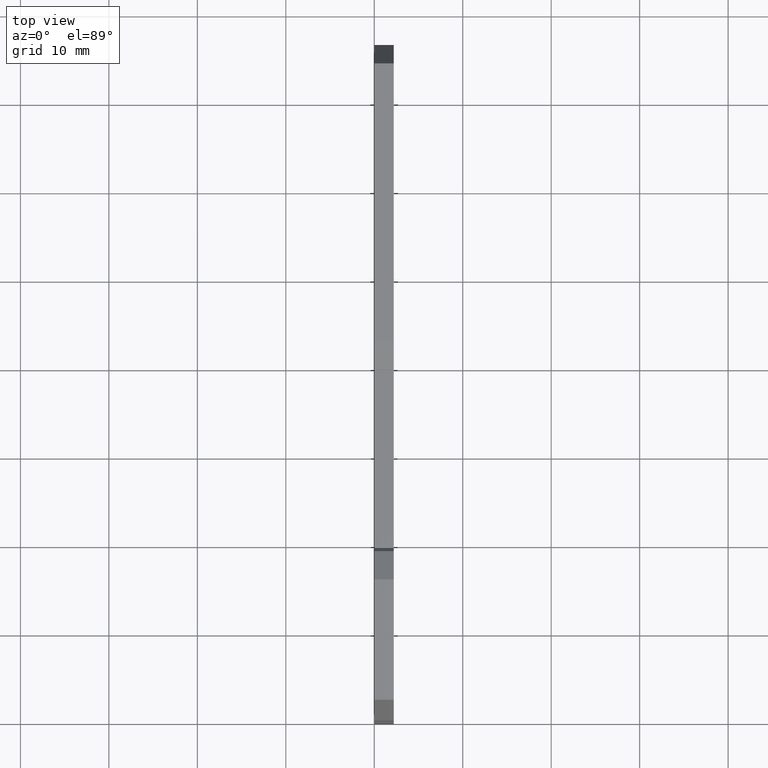
[diagram: clean part render]
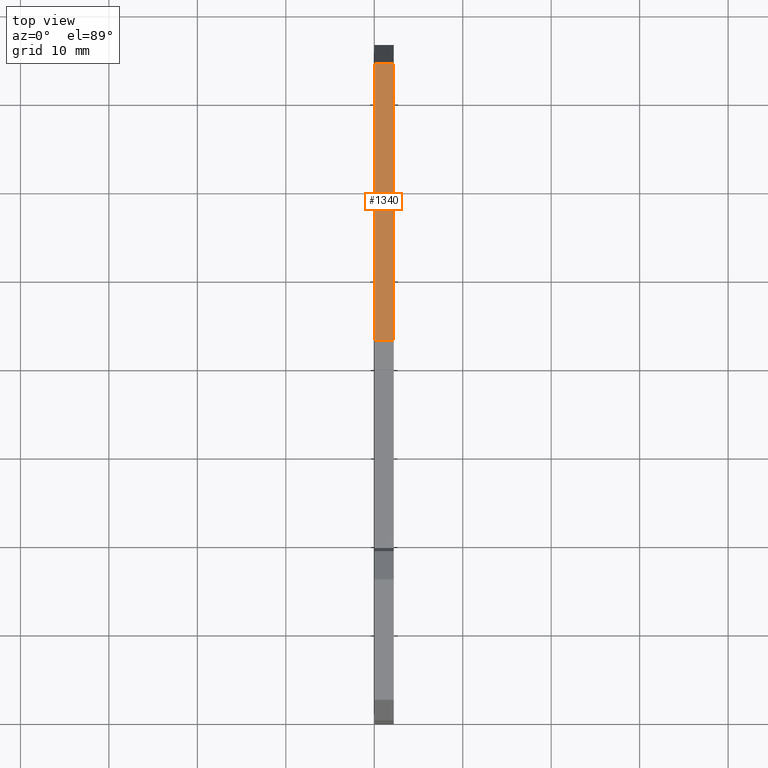
[diagram: same view with one face highlighted and labeled with its STEP entity id]
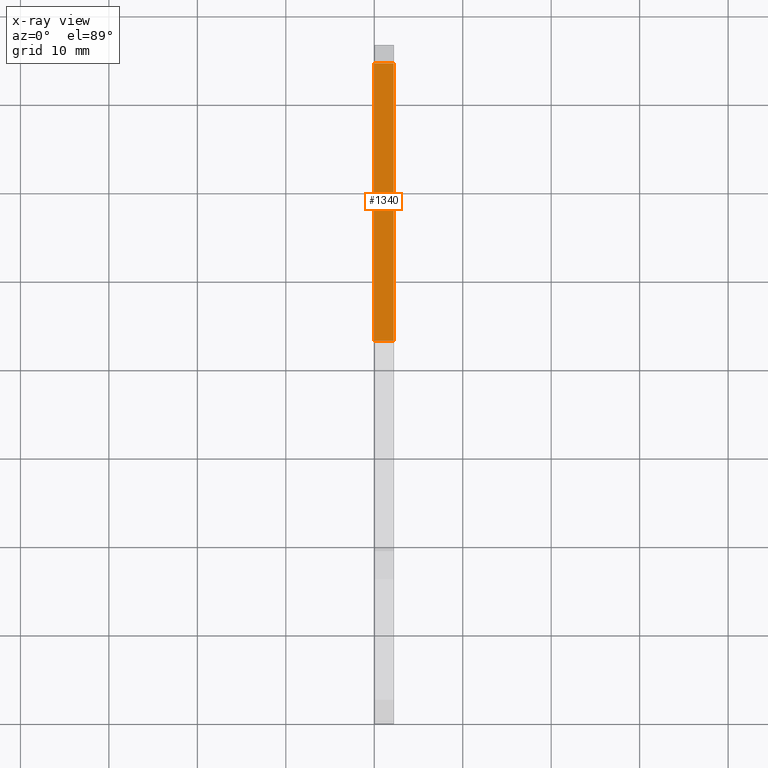
[diagram: x-ray of the same camera — body ghosted, the highlighted face saturated]
A machine part, top view. The second image highlights one B-rep face of the part: STEP entity #1340.
The next image is the same camera in x-ray: the body ghosted, the highlighted face saturated — about 0% of this face is hidden behind the body in this view.
In plain terms, the highlighted planar face has unit normal (-0, 0, 1).
Its self-contained STEP definition (entity closure, byte-faithful):
#950=CARTESIAN_POINT('',(79.8284829547486,-6.65000000001046,
-3.68594044175552E-14));
#960=DIRECTION('',(0.,1.,0.));
#970=DIRECTION('',(0.,0.,1.));
#980=AXIS2_PLACEMENT_3D('',#950,#960,#970);
#990=PLANE('',#980);
#1000=CARTESIAN_POINT('',(82.9015374042713,-6.65000000001046,
-2.8421709430404E-14));
#1010=DIRECTION('',(0.,0.,-1.));
#1020=VECTOR('',#1010,1.);
#1030=LINE('',#1000,#1020);
#1040=CARTESIAN_POINT('',(82.9015374042713,-6.65000000001046,
2.19999999999845));
#1050=VERTEX_POINT('',#1040);
#1060=CARTESIAN_POINT('',(82.9015374042713,-6.65000000001046,
-3.68594044175552E-14));
#1070=VERTEX_POINT('',#1060);
#1080=EDGE_CURVE('',#1050,#1070,#1030,.T.);
#1090=ORIENTED_EDGE('',*,*,#1080,.T.);
#1100=CARTESIAN_POINT('',(47.920285,-6.65000000001046,2.19999999999845))
;
#1110=DIRECTION('',(1.,0.,0.));
#1120=VECTOR('',#1110,1.);
#1130=LINE('',#1100,#1120);
#1140=CARTESIAN_POINT('',(51.5784150526186,-6.65000000001046,
2.19999999999845));
#1150=VERTEX_POINT('',#1140);
#1160=EDGE_CURVE('',#1150,#1050,#1130,.T.);
#1170=ORIENTED_EDGE('',*,*,#1160,.T.);
#1180=CARTESIAN_POINT('',(51.5784150526186,-6.65000000001045,
-2.8421709430404E-14));
#1190=DIRECTION('',(-1.85088132276715E-14,0.,-1.));
#1200=VECTOR('',#1190,1.);
#1210=LINE('',#1180,#1200);
#1220=CARTESIAN_POINT('',(51.5784150526186,-6.65000000001046,
-3.68594044175552E-14));
#1230=VERTEX_POINT('',#1220);
#1240=EDGE_CURVE('',#1150,#1230,#1210,.T.);
#1250=ORIENTED_EDGE('',*,*,#1240,.F.);
#1260=CARTESIAN_POINT('',(47.920285,-6.65000000001046,
-3.68594044175552E-14));
#1270=DIRECTION('',(-1.,0.,0.));
#1280=VECTOR('',#1270,1.);
#1290=LINE('',#1260,#1280);
#1300=EDGE_CURVE('',#1070,#1230,#1290,.T.);
#1310=ORIENTED_EDGE('',*,*,#1300,.T.);
#1320=EDGE_LOOP('',(#1310,#1250,#1170,#1090));
#1330=FACE_OUTER_BOUND('',#1320,.T.);
#1340=ADVANCED_FACE('',(#1330),#990,.T.);